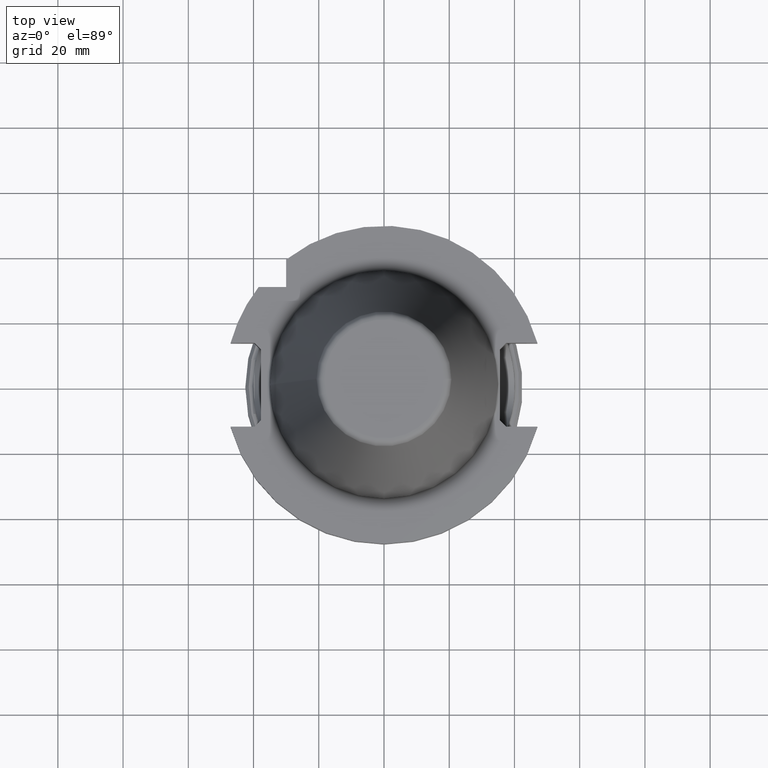
[diagram: clean part render]
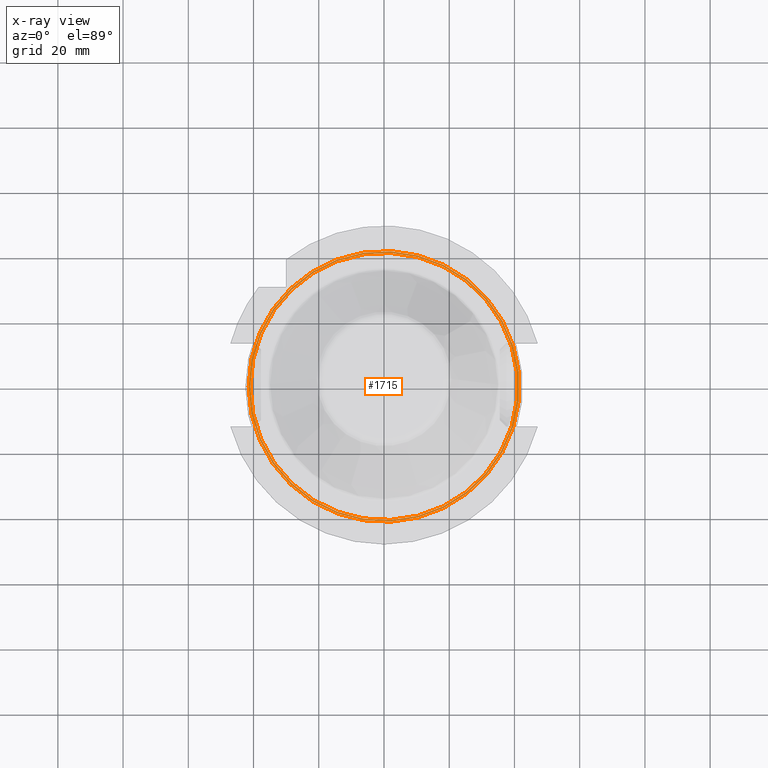
[diagram: x-ray — body ghosted, one internal face saturated and labeled with its STEP entity id]
A machine part, top view, then the same camera in x-ray: the body is ghosted and one INTERNAL B-rep face — a face not visible from any outside direction — is saturated and labeled: STEP entity #1715.
In plain terms, the highlighted planar face has unit normal (0, 0, -1).
Its self-contained STEP definition (entity closure, byte-faithful):
#653=ORIENTED_EDGE('',*,*,#1020,.T.);
#654=ORIENTED_EDGE('',*,*,#1021,.F.);
#1020=EDGE_CURVE('',#1209,#1209,#1318,.T.);
#1021=EDGE_CURVE('',#1210,#1210,#1319,.T.);
#1209=VERTEX_POINT('',#2971);
#1210=VERTEX_POINT('',#2973);
#1318=CIRCLE('',#1903,41.);
#1319=CIRCLE('',#1904,41.5);
#1419=EDGE_LOOP('',(#653));
#1420=EDGE_LOOP('',(#654));
#1547=FACE_BOUND('',#1419,.T.);
#1548=FACE_BOUND('',#1420,.T.);
#1631=PLANE('',#1902);
#1715=ADVANCED_FACE('',(#1547,#1548),#1631,.F.);
#1902=AXIS2_PLACEMENT_3D('',#2969,#2323,#2324);
#1903=AXIS2_PLACEMENT_3D('',#2970,#2325,#2326);
#1904=AXIS2_PLACEMENT_3D('',#2972,#2327,#2328);
#2323=DIRECTION('',(0.,2.22044604925031E-16,-1.));
#2324=DIRECTION('',(-1.,0.,0.));
#2325=DIRECTION('',(0.,2.22044604925031E-16,-1.));
#2326=DIRECTION('',(-1.,0.,0.));
#2327=DIRECTION('',(0.,2.22044604925031E-16,-1.));
#2328=DIRECTION('',(-1.,0.,0.));
#2969=CARTESIAN_POINT('',(0.,41.5,-35.));
#2970=CARTESIAN_POINT('',(0.,7.7715611723761E-15,-35.));
#2971=CARTESIAN_POINT('',(-41.,7.7715611723761E-15,-35.));
#2972=CARTESIAN_POINT('',(0.,7.7715611723761E-15,-35.));
#2973=CARTESIAN_POINT('',(-41.5,7.7715611723761E-15,-35.));